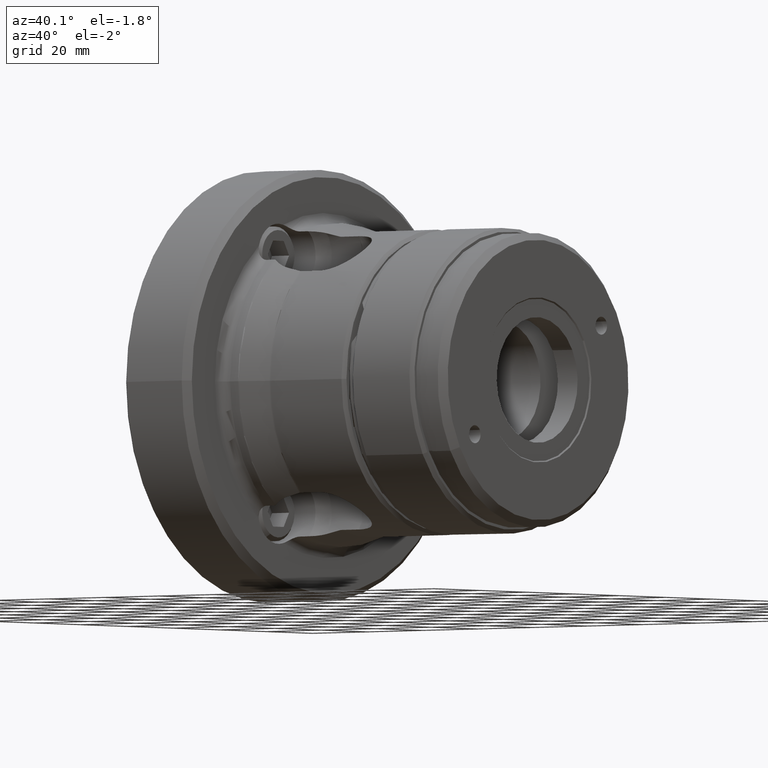
[diagram: clean part render]
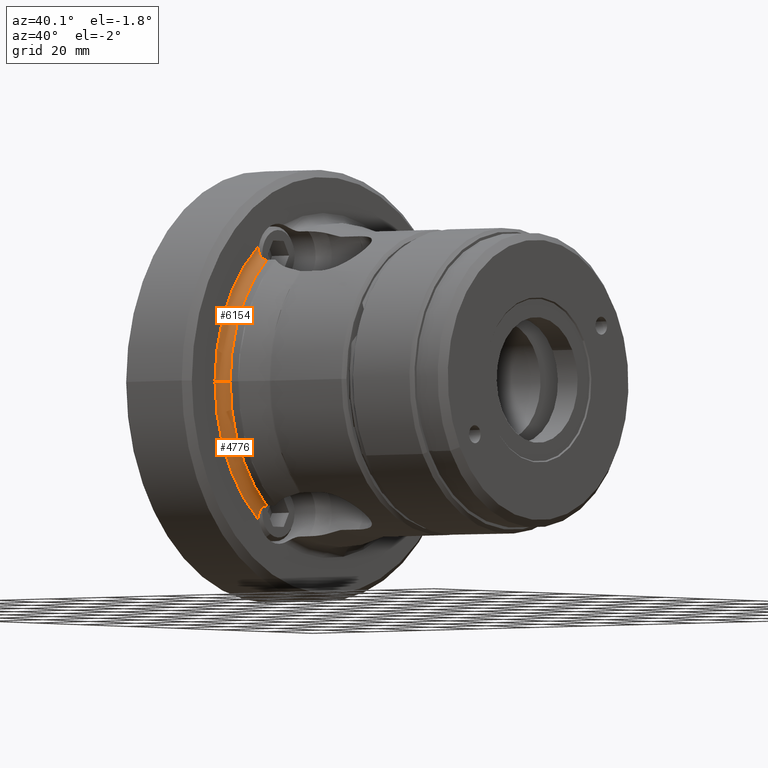
[diagram: same view with one multi-face feature highlighted, each face labeled with its STEP entity id]
A machine part, auxiliary view. The highlighted faces form ONE feature: a constant-radius fillet chain: 2 tangent blend faces with common blend radius 3 mm. The faces share edges in the B-rep.
Their STEP definitions:
[1] entity #6154 (Torus):
#253 = CARTESIAN_POINT ( 'NONE',  ( 25.18989182901070800, -29.27890769423060000, 34.31583419700124400 ) ) ;
#273 = ORIENTED_EDGE ( 'NONE', *, *, #577, .T. ) ;
#288 = CARTESIAN_POINT ( 'NONE',  ( 23.05465443861401900, -29.26830930450121900, 37.29714855745792300 ) ) ;
#456 = DIRECTION ( 'NONE',  ( -8.386477729145238100E-033, -1.000000000000000000, 0.0000000000000000000 ) ) ;
#523 = DIRECTION ( 'NONE',  ( -1.000000000000000000, 0.0000000000000000000, 0.0000000000000000000 ) ) ;
#536 = B_SPLINE_CURVE_WITH_KNOTS ( 'NONE', 3,
 ( #3800, #8096, #4534, #253, #5257, #985, #5976, #1688, #6700, #2415, #7397, #3121, #8128, #3832, #8831, #4562, #288, #5285, #1011, #6006 ),
 .UNSPECIFIED., .F., .F.,
 ( 4, 2, 2, 2, 2, 2, 2, 2, 2, 4 ),
 ( 1.970615669439962100E-007, 0.0007029150013583048800, 0.001054273971253985300, 0.001405632941149665800, 0.002108350880941007400, 0.002811068820732349200, 0.003513786760523690500, 0.004216504700315031100, 0.004919222640106373300, 0.005621940579897714700 ),
 .UNSPECIFIED. ) ;
#577 = EDGE_CURVE ( 'NONE', #650, #7280, #4949, .T. ) ;
#650 = VERTEX_POINT ( 'NONE', #3499 ) ;
#985 = CARTESIAN_POINT ( 'NONE',  ( 24.86058705907517900, -29.29997004249166500, 34.44674457345432500 ) ) ;
#1011 = CARTESIAN_POINT ( 'NONE',  ( 22.99999999999999300, -29.11742139712167400, 37.98495971834455500 ) ) ;
#1179 = VERTEX_POINT ( 'NONE', #1488 ) ;
#1445 = DIRECTION ( 'NONE',  ( -1.000000000000000000, 8.386477729145238100E-033, -0.0000000000000000000 ) ) ;
#1488 = CARTESIAN_POINT ( 'NONE',  ( 22.99999999999999600, -29.05210451652867900, 38.20962212794954400 ) ) ;
#1688 = CARTESIAN_POINT ( 'NONE',  ( 24.45361784348957100, -29.33272585767099400, 34.67730544857432300 ) ) ;
#1896 = CARTESIAN_POINT ( 'NONE',  ( 23.00000000000000400, -1.928889877703404800E-031, 0.0000000000000000000 ) ) ;
#2291 = CARTESIAN_POINT ( 'NONE',  ( 26.00000000000002100, -29.25694527071054200, 34.19109757563580100 ) ) ;
#2415 = CARTESIAN_POINT ( 'NONE',  ( 23.93266180936462800, -29.38015696607298100, 35.15495900198696700 ) ) ;
#2451 = ORIENTED_EDGE ( 'NONE', *, *, #3324, .T. ) ;
#2544 = EDGE_CURVE ( 'NONE', #8915, #1179, #8399, .T. ) ;
#2581 = DIRECTION ( 'NONE',  ( -1.000000000000000000, 8.386477729145238100E-033, -0.0000000000000000000 ) ) ;
#2610 = ORIENTED_EDGE ( 'NONE', *, *, #2544, .F. ) ;
#2617 = DIRECTION ( 'NONE',  ( 0.0000000000000000000, -1.000000000000000000, 0.0000000000000000000 ) ) ;
#2663 = FACE_OUTER_BOUND ( 'NONE', #7796, .T. ) ;
#3121 = CARTESIAN_POINT ( 'NONE',  ( 23.53372126582621600, -29.40223808120083900, 35.74034057735785600 ) ) ;
#3324 = EDGE_CURVE ( 'NONE', #8915, #650, #4692, .T. ) ;
#3499 = CARTESIAN_POINT ( 'NONE',  ( 26.00000000000002100, -45.00000000000000000, 0.0000000000000000000 ) ) ;
#3800 = CARTESIAN_POINT ( 'NONE',  ( 26.00000000000002100, -29.25694527071054200, 34.19109757563580100 ) ) ;
#3832 = CARTESIAN_POINT ( 'NONE',  ( 23.25771753597115000, -29.38058504128963800, 36.38941012619157100 ) ) ;
#3999 = CARTESIAN_POINT ( 'NONE',  ( 26.00000000000000400, 0.0000000000000000000, 0.0000000000000000000 ) ) ;
#4032 = ORIENTED_EDGE ( 'NONE', *, *, #5361, .T. ) ;
#4534 = CARTESIAN_POINT ( 'NONE',  ( 25.53010952220104800, -29.26289967188144200, 34.22268950032543700 ) ) ;
#4562 = CARTESIAN_POINT ( 'NONE',  ( 23.08948871788443900, -29.30555093808964500, 37.06915624892141600 ) ) ;
#4692 = CIRCLE ( 'NONE', #7504, 3.000000000000002700 ) ;
#4794 = DIRECTION ( 'NONE',  ( 0.0000000000000000000, -0.0000000000000000000, -1.000000000000000000 ) ) ;
#4949 = CIRCLE ( 'NONE', #9006, 45.00000000000000000 ) ;
#5257 = CARTESIAN_POINT ( 'NONE',  ( 25.07717480163624300, -29.28546615563973500, 34.35497730773030200 ) ) ;
#5285 = CARTESIAN_POINT ( 'NONE',  ( 23.00981621683148900, -29.17437939075203300, 37.75481986686464400 ) ) ;
#5361 = EDGE_CURVE ( 'NONE', #7280, #1179, #536, .T. ) ;
#5734 = CARTESIAN_POINT ( 'NONE',  ( 26.00000000000002100, -2.180484209577763700E-031, 0.0000000000000000000 ) ) ;
#5976 = CARTESIAN_POINT ( 'NONE',  ( 24.75610157738137600, -29.30793022612037300, 34.49943935183289100 ) ) ;
#6006 = CARTESIAN_POINT ( 'NONE',  ( 22.99999999999999600, -29.05210451652867900, 38.20962212794954400 ) ) ;
#6154 = ADVANCED_FACE ( 'NONE', ( #2663 ), #6250, .F. ) ;
#6193 = AXIS2_PLACEMENT_3D ( 'NONE', #3999, #2581, #456 ) ;
#6250 = TOROIDAL_SURFACE ( 'NONE', #6193, 48.00000000000000000, 3.000000000000000900 ) ;
#6700 = CARTESIAN_POINT ( 'NONE',  ( 24.26495653315161100, -29.35067022614129700, 34.82430588624205800 ) ) ;
#6909 = DIRECTION ( 'NONE',  ( -1.000000000000000000, 8.386477729145238100E-033, -0.0000000000000000000 ) ) ;
#7280 = VERTEX_POINT ( 'NONE', #2291 ) ;
#7397 = CARTESIAN_POINT ( 'NONE',  ( 23.78573602933126500, -29.39191712340418400, 35.34110377893819100 ) ) ;
#7504 = AXIS2_PLACEMENT_3D ( 'NONE', #9054, #4794, #523 ) ;
#7679 = CARTESIAN_POINT ( 'NONE',  ( 23.00000000000000000, -48.00000000000001400, 0.0000000000000000000 ) ) ;
#7796 = EDGE_LOOP ( 'NONE', ( #2610, #2451, #273, #4032 ) ) ;
#8030 = AXIS2_PLACEMENT_3D ( 'NONE', #1896, #6909, #2617 ) ;
#8037 = DIRECTION ( 'NONE',  ( 0.0000000000000000000, -1.000000000000000000, 0.0000000000000000000 ) ) ;
#8096 = CARTESIAN_POINT ( 'NONE',  ( 25.76226947575223400, -29.25694527071053500, 34.19109757563580800 ) ) ;
#8128 = CARTESIAN_POINT ( 'NONE',  ( 23.42969903682520500, -29.40082051943464900, 35.95079899599046800 ) ) ;
#8399 = CIRCLE ( 'NONE', #8030, 48.00000000000002100 ) ;
#8831 = CARTESIAN_POINT ( 'NONE',  ( 23.19065825220075900, -29.36166264414813300, 36.61626057710664400 ) ) ;
#8915 = VERTEX_POINT ( 'NONE', #7679 ) ;
#9006 = AXIS2_PLACEMENT_3D ( 'NONE', #5734, #1445, #8037 ) ;
#9054 = CARTESIAN_POINT ( 'NONE',  ( 26.00000000000000400, -48.00000000000000000, 0.0000000000000000000 ) ) ;
[2] entity #4776 (Torus):
#8 = CARTESIAN_POINT ( 'NONE',  ( 26.00000000000002100, -29.25694527071099300, -34.19109757563540300 ) ) ;
#88 = AXIS2_PLACEMENT_3D ( 'NONE', #4542, #263, #5265 ) ;
#168 = ORIENTED_EDGE ( 'NONE', *, *, #8338, .T. ) ;
#263 = DIRECTION ( 'NONE',  ( -1.000000000000000000, 8.386477729145238100E-033, -0.0000000000000000000 ) ) ;
#283 = DIRECTION ( 'NONE',  ( -1.000000000000000000, 8.386477729145238100E-033, -0.0000000000000000000 ) ) ;
#523 = DIRECTION ( 'NONE',  ( -1.000000000000000000, 0.0000000000000000000, 0.0000000000000000000 ) ) ;
#650 = VERTEX_POINT ( 'NONE', #3499 ) ;
#701 = CARTESIAN_POINT ( 'NONE',  ( 23.53488437383927200, -29.40219857688751000, -35.73843162225190900 ) ) ;
#1423 = CARTESIAN_POINT ( 'NONE',  ( 23.93351786283594500, -29.38008399917072900, -35.15400932038922800 ) ) ;
#1424 = ORIENTED_EDGE ( 'NONE', *, *, #1676, .F. ) ;
#1487 = DIRECTION ( 'NONE',  ( -1.000000000000000000, 8.386477729145238100E-033, -0.0000000000000000000 ) ) ;
#1676 = EDGE_CURVE ( 'NONE', #6468, #8915, #2699, .T. ) ;
#2137 = CARTESIAN_POINT ( 'NONE',  ( 24.44866403615598200, -29.33316333634996200, -34.68067727906908700 ) ) ;
#2339 = VERTEX_POINT ( 'NONE', #3559 ) ;
#2614 = AXIS2_PLACEMENT_3D ( 'NONE', #6001, #283, #3141 ) ;
#2699 = CIRCLE ( 'NONE', #5080, 48.00000000000002100 ) ;
#2823 = CARTESIAN_POINT ( 'NONE',  ( 23.00000000000000400, -29.18259046546444300, -37.76080572028799800 ) ) ;
#2854 = CARTESIAN_POINT ( 'NONE',  ( 24.85930482945052200, -29.30006474035079800, -34.44736556006310500 ) ) ;
#3141 = DIRECTION ( 'NONE',  ( -8.386477729145238100E-033, -1.000000000000000000, 0.0000000000000000000 ) ) ;
#3324 = EDGE_CURVE ( 'NONE', #8915, #650, #4692, .T. ) ;
#3499 = CARTESIAN_POINT ( 'NONE',  ( 26.00000000000002100, -45.00000000000000000, 0.0000000000000000000 ) ) ;
#3559 = CARTESIAN_POINT ( 'NONE',  ( 26.00000000000002100, -29.25694527071099300, -34.19109757563540300 ) ) ;
#3561 = CARTESIAN_POINT ( 'NONE',  ( 25.18593020226596500, -29.27912742866737600, -34.31714038737190000 ) ) ;
#4060 = EDGE_LOOP ( 'NONE', ( #7383, #1424, #168, #9179 ) ) ;
#4256 = CARTESIAN_POINT ( 'NONE',  ( 23.19122402784326900, -29.36187253779088000, -36.61414732107094500 ) ) ;
#4288 = CARTESIAN_POINT ( 'NONE',  ( 25.76184334058601200, -29.25694527071098600, -34.19109757563527600 ) ) ;
#4533 = B_SPLINE_CURVE_WITH_KNOTS ( 'NONE', 3,
 ( #9220, #2823, #8533, #4256, #9248, #4981, #701, #5713, #1423, #6436, #2137, #7130, #2854, #7845, #3561, #8570, #4288, #8 ),
 .UNSPECIFIED., .F., .F.,
 ( 4, 2, 2, 2, 2, 2, 2, 2, 4 ),
 ( 0.01915494105350923700, 0.02056173515747175200, 0.02126513220945299600, 0.02196852926143424300, 0.02267192631341548700, 0.02337532336539673400, 0.02372702189138735000, 0.02407872041737797000, 0.02478211746935919700 ),
 .UNSPECIFIED. ) ;
#4542 = CARTESIAN_POINT ( 'NONE',  ( 26.00000000000002100, -2.180484209577763700E-031, 0.0000000000000000000 ) ) ;
#4692 = CIRCLE ( 'NONE', #7504, 3.000000000000002700 ) ;
#4776 = ADVANCED_FACE ( 'NONE', ( #4907 ), #8484, .F. ) ;
#4794 = DIRECTION ( 'NONE',  ( 0.0000000000000000000, -0.0000000000000000000, -1.000000000000000000 ) ) ;
#4907 = FACE_OUTER_BOUND ( 'NONE', #4060, .T. ) ;
#4981 = CARTESIAN_POINT ( 'NONE',  ( 23.43033325780783500, -29.40088010734641700, -35.94925841612879900 ) ) ;
#5080 = AXIS2_PLACEMENT_3D ( 'NONE', #5787, #1487, #6502 ) ;
#5116 = CARTESIAN_POINT ( 'NONE',  ( 23.00000000000000000, -29.05210451652920500, -38.20962212794917400 ) ) ;
#5265 = DIRECTION ( 'NONE',  ( 0.0000000000000000000, -1.000000000000000000, 0.0000000000000000000 ) ) ;
#5713 = CARTESIAN_POINT ( 'NONE',  ( 23.78512195811858000, -29.39193412472567600, -35.34214310663683300 ) ) ;
#5787 = CARTESIAN_POINT ( 'NONE',  ( 23.00000000000000400, -1.928889877703404800E-031, 0.0000000000000000000 ) ) ;
#6001 = CARTESIAN_POINT ( 'NONE',  ( 26.00000000000000400, 0.0000000000000000000, 0.0000000000000000000 ) ) ;
#6436 = CARTESIAN_POINT ( 'NONE',  ( 24.26533797372368900, -29.35063337069197000, -34.82402455296195900 ) ) ;
#6468 = VERTEX_POINT ( 'NONE', #5116 ) ;
#6502 = DIRECTION ( 'NONE',  ( 0.0000000000000000000, -1.000000000000000000, 0.0000000000000000000 ) ) ;
#6647 = EDGE_CURVE ( 'NONE', #2339, #650, #6910, .T. ) ;
#6910 = CIRCLE ( 'NONE', #88, 45.00000000000000000 ) ;
#7130 = CARTESIAN_POINT ( 'NONE',  ( 24.75274164819198200, -29.30819040022919400, -34.50119214439504100 ) ) ;
#7383 = ORIENTED_EDGE ( 'NONE', *, *, #3324, .F. ) ;
#7504 = AXIS2_PLACEMENT_3D ( 'NONE', #9054, #4794, #523 ) ;
#7679 = CARTESIAN_POINT ( 'NONE',  ( 23.00000000000000000, -48.00000000000001400, 0.0000000000000000000 ) ) ;
#7845 = CARTESIAN_POINT ( 'NONE',  ( 25.07548694020638500, -29.28557047168825600, -34.35561579578345000 ) ) ;
#8338 = EDGE_CURVE ( 'NONE', #6468, #2339, #4533, .T. ) ;
#8484 = TOROIDAL_SURFACE ( 'NONE', #2614, 48.00000000000000000, 3.000000000000000900 ) ;
#8533 = CARTESIAN_POINT ( 'NONE',  ( 23.03908140676418600, -29.27779997678680600, -37.29397608783934000 ) ) ;
#8570 = CARTESIAN_POINT ( 'NONE',  ( 25.52433951853862500, -29.26310648549700100, -34.22383923434991000 ) ) ;
#8915 = VERTEX_POINT ( 'NONE', #7679 ) ;
#9054 = CARTESIAN_POINT ( 'NONE',  ( 26.00000000000000400, -48.00000000000000000, 0.0000000000000000000 ) ) ;
#9179 = ORIENTED_EDGE ( 'NONE', *, *, #6647, .T. ) ;
#9220 = CARTESIAN_POINT ( 'NONE',  ( 23.00000000000000000, -29.05210451652920500, -38.20962212794917400 ) ) ;
#9248 = CARTESIAN_POINT ( 'NONE',  ( 23.25743952526079300, -29.38056733440884500, -36.39004240739051700 ) ) ;